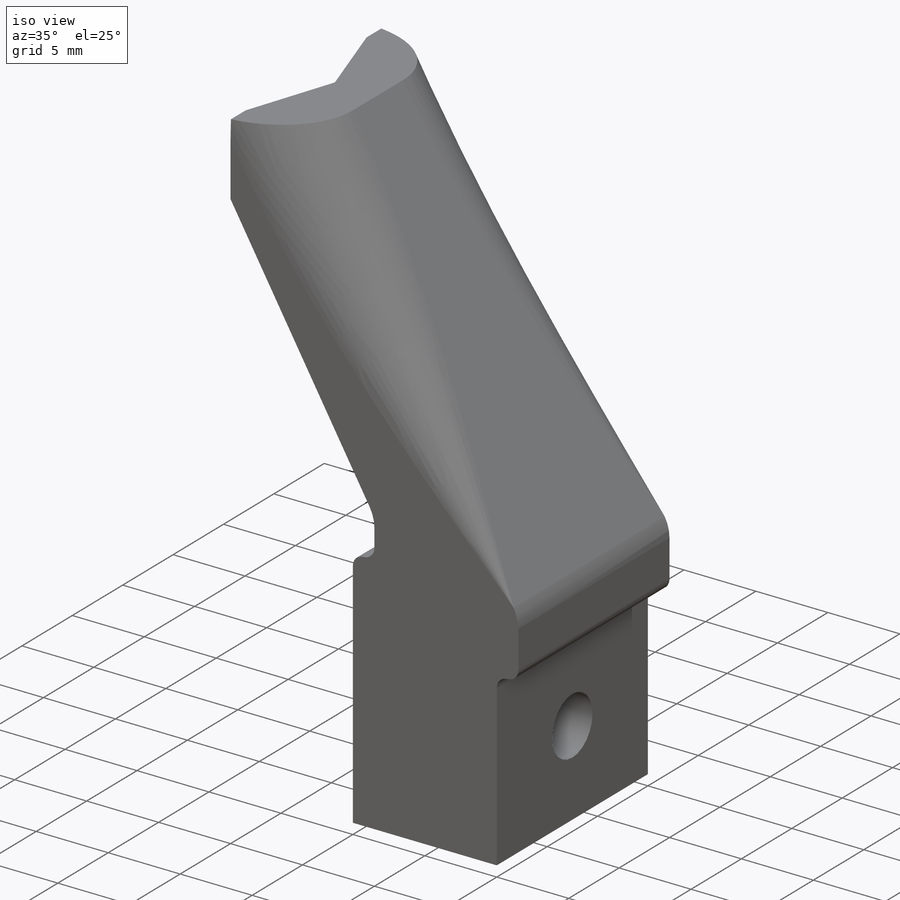
[diagram: iso view]
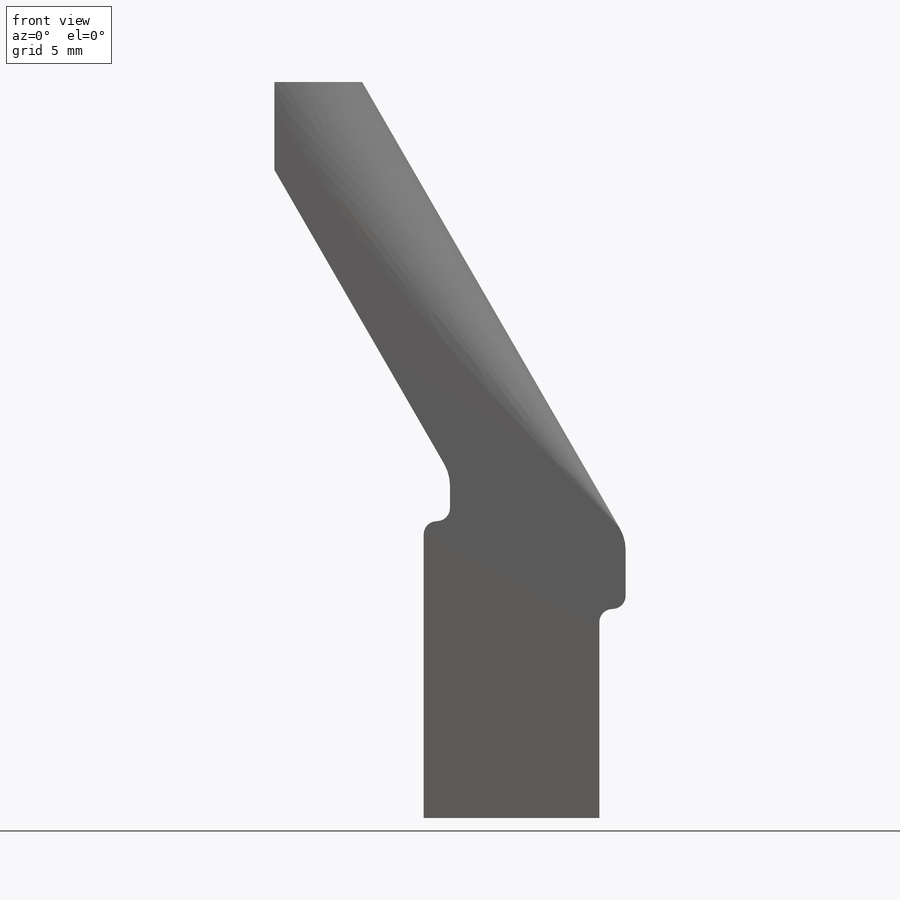
[diagram: front view]
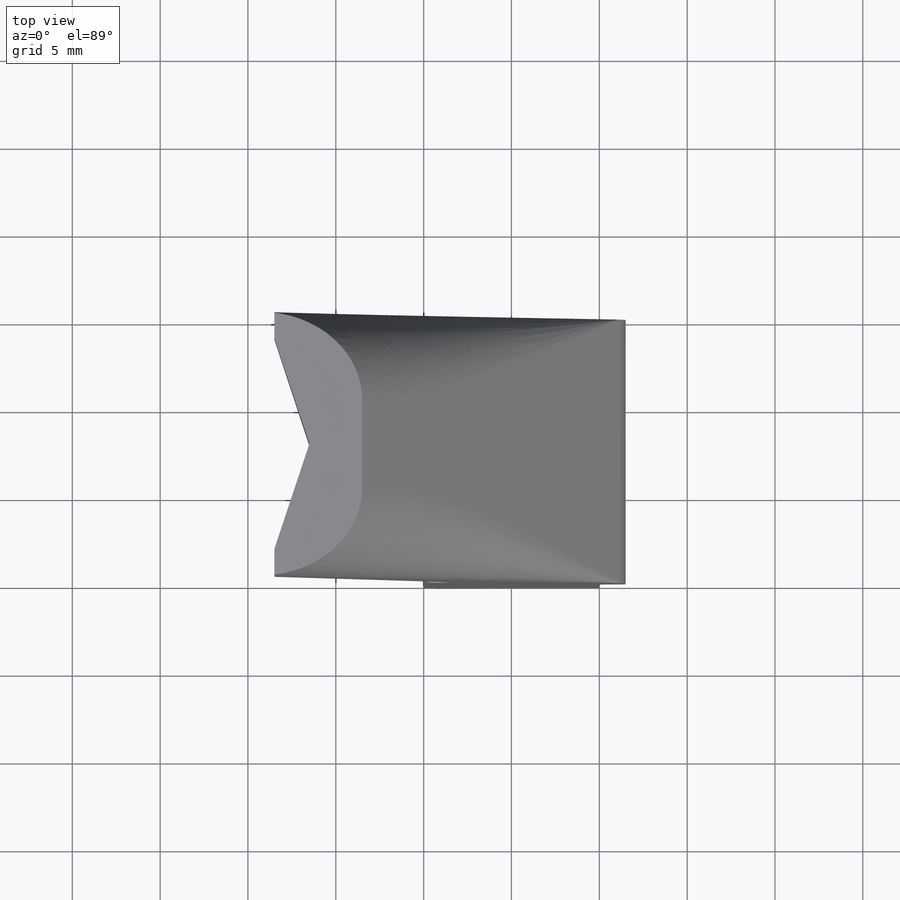
[diagram: top view]
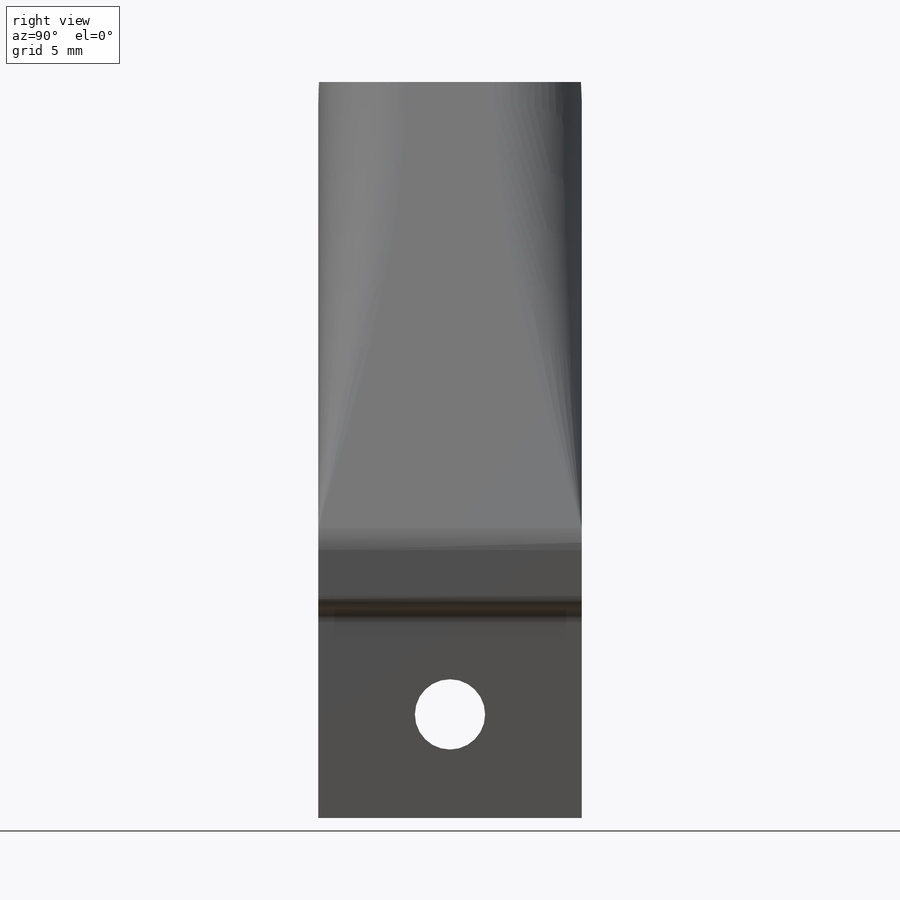
[diagram: right view]
SOLIDWORKS PART (.sldprt)
format: sldprt  version: not decoded by parser v0  size: 250,368 bytes
history: native  units: mm
features: sketch x3, cut_extrude x2, fillet x2, material x1, extrude x1 (+12 scaffold rows collapsed)
feature tree (21):
  scaffold x12  (default folders/planes/origin — collapsed)
  material  "Material <not specified>"
  sketch  "Sketch1"  dims[c1.D1=11.9mm c1.D2=5.0mm c1.D3=~48.185509mm c2.D3=150.0deg c2.D4=6.0mm c2.D5=2.5mm c2.D6=10.0mm c2.D7=5.0mm c2.D8=30.0mm c2.D9=5.0mm c2.D10=10.0mm c2.D11=1.5mm]
  extrude  "Boss-Extrude1"  Depth=15mm
  sketch  "Sketch2"  dims[c1.D1=~8.014084mm c1.D2=6.0mm c1.D3=~0.710504mm c2.D2=6.0mm]
  cut_extrude  "Cut-Extrude1"  [1 undecoded]
  sketch  "Sketch3"  dims[c1.D1=1.5mm c1.D2=2.0mm c2.D1=1.5mm]
  cut_extrude  "Cut-Extrude2"  [1 undecoded]
  fillet  "Fillet2"  Radius=2.5mm
  fillet  "Fillet3"  Radius=0.75mm
decode coverage: 6 of 8 modeling features carry decoded parameters
note: ~ marks probable driven/reference dimensions
note: 2 parameter values undecoded
note: suppression state not decoded; provenance and decode notes live in map.json
